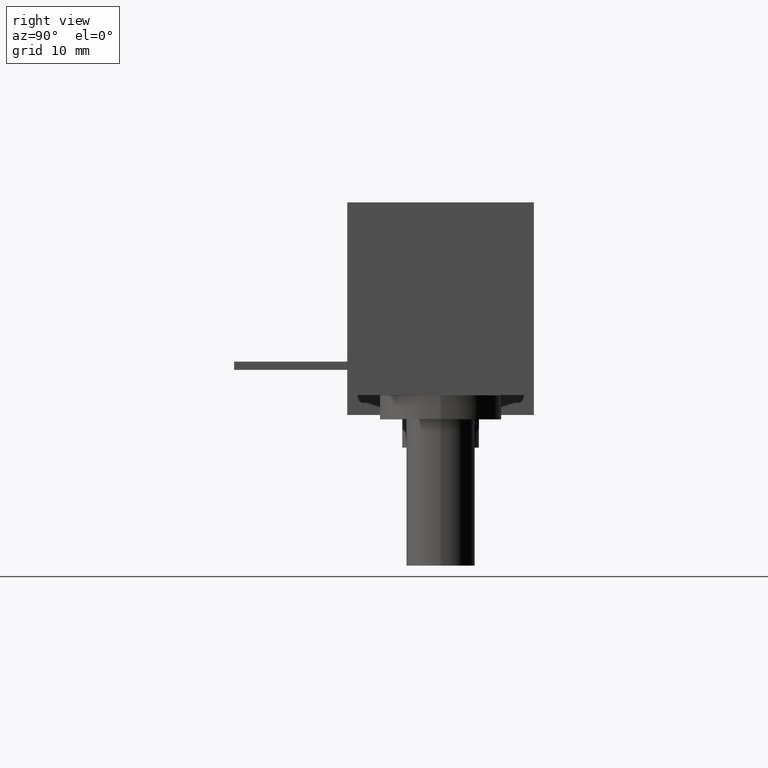
[diagram: clean part render]
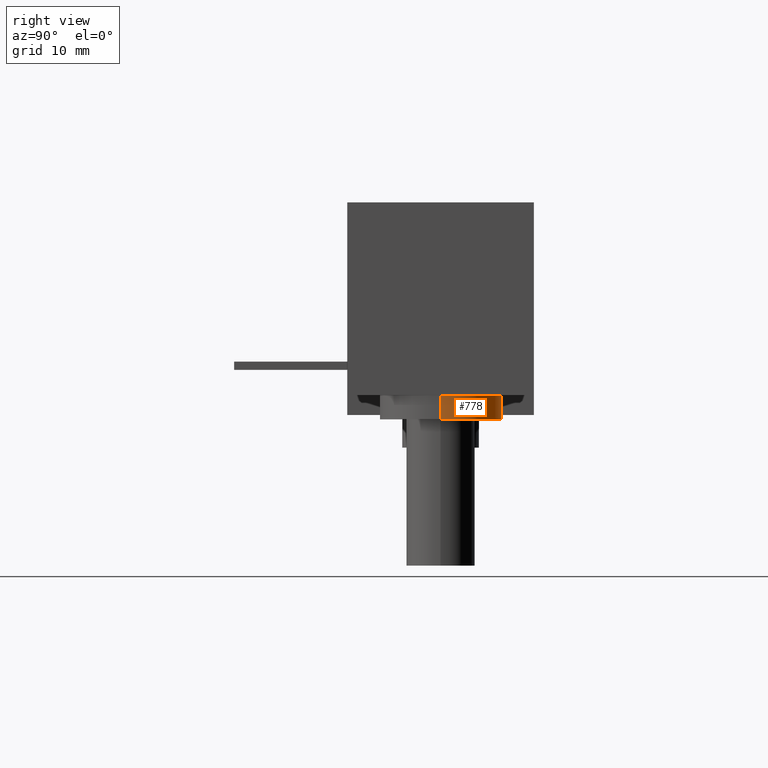
[diagram: same view with one face highlighted and labeled with its STEP entity id]
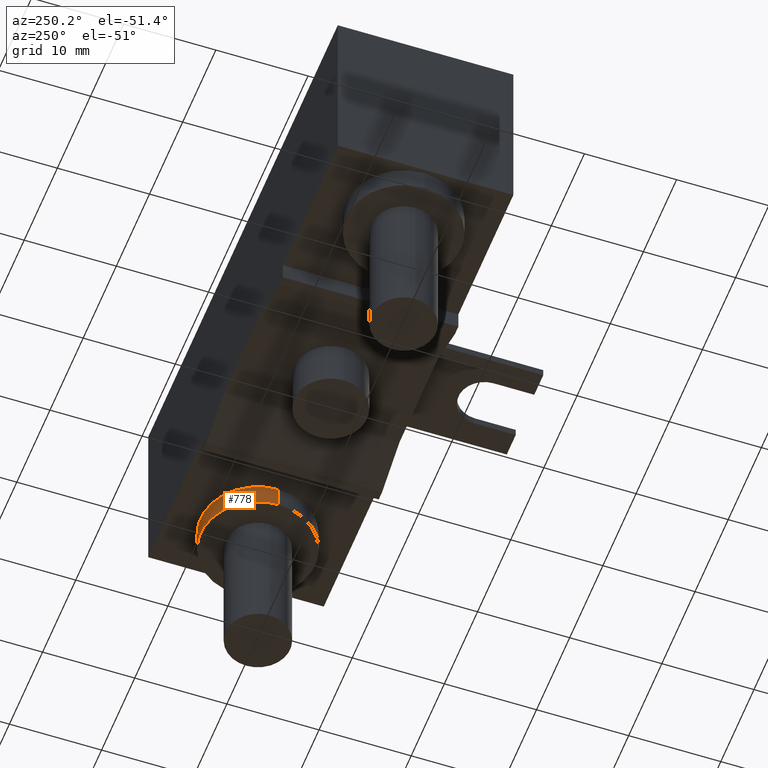
[diagram: same view with one face highlighted and labeled with its STEP entity id]
A machine part, right view. The second image highlights one B-rep face of the part: STEP entity #778.
A second angle (auxiliary view) of the same face is appended — the face is thin or edge-on in the first view.
In plain terms, the highlighted cylindrical surface (partial cylindrical patch) has radius 6.225 mm, axis along (0, 0, -1).
Its self-contained STEP definition (entity closure, byte-faithful):
#130=CARTESIAN_POINT('',(2.197E1,9.525E0,-9.85E0));
#131=DIRECTION('',(0.E0,0.E0,-1.E0));
#132=DIRECTION('',(-1.E0,0.E0,0.E0));
#133=AXIS2_PLACEMENT_3D('',#130,#131,#132);
#191=DIRECTION('',(0.E0,0.E0,-1.E0));
#192=VECTOR('',#191,2.45E0);
#193=CARTESIAN_POINT('',(2.8195E1,9.525E0,-9.85E0));
#194=LINE('',#193,#192);
#195=DIRECTION('',(0.E0,0.E0,-1.E0));
#196=VECTOR('',#195,2.45E0);
#197=CARTESIAN_POINT('',(1.5745E1,9.525E0,-9.85E0));
#198=LINE('',#197,#196);
#204=CARTESIAN_POINT('',(2.197E1,9.525E0,-1.23E1));
#205=DIRECTION('',(0.E0,0.E0,-1.E0));
#206=DIRECTION('',(-1.E0,0.E0,0.E0));
#207=AXIS2_PLACEMENT_3D('',#204,#205,#206);
#431=CARTESIAN_POINT('',(2.8195E1,9.525E0,-1.23E1));
#432=CARTESIAN_POINT('',(1.5745E1,9.525E0,-1.23E1));
#433=VERTEX_POINT('',#431);
#434=VERTEX_POINT('',#432);
#443=CARTESIAN_POINT('',(2.8195E1,9.525E0,-9.85E0));
#444=CARTESIAN_POINT('',(1.5745E1,9.525E0,-9.85E0));
#445=VERTEX_POINT('',#443);
#446=VERTEX_POINT('',#444);
#766=CARTESIAN_POINT('',(2.197E1,9.525E0,-9.85E0));
#767=DIRECTION('',(0.E0,0.E0,-1.E0));
#768=DIRECTION('',(1.E0,0.E0,0.E0));
#769=AXIS2_PLACEMENT_3D('',#766,#767,#768);
#770=CYLINDRICAL_SURFACE('',#769,6.225E0);
#771=ORIENTED_EDGE('',*,*,#699,.F.);
#772=ORIENTED_EDGE('',*,*,#761,.T.);
#774=ORIENTED_EDGE('',*,*,#773,.T.);
#775=ORIENTED_EDGE('',*,*,#757,.F.);
#776=EDGE_LOOP('',(#771,#772,#774,#775));
#777=FACE_OUTER_BOUND('',#776,.F.);
#134=CIRCLE('',#133,6.225E0);
#208=CIRCLE('',#207,6.225E0);
#699=EDGE_CURVE('',#446,#445,#134,.T.);
#757=EDGE_CURVE('',#445,#433,#194,.T.);
#761=EDGE_CURVE('',#446,#434,#198,.T.);
#773=EDGE_CURVE('',#434,#433,#208,.T.);
#778=ADVANCED_FACE('',(#777),#770,.T.);